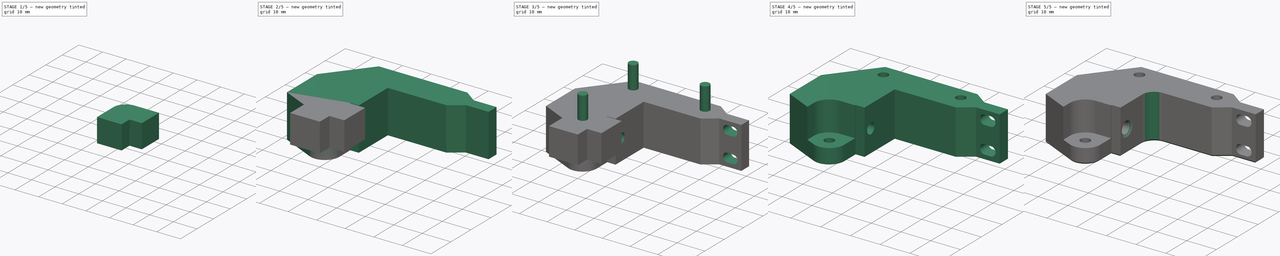
[diagram: build sequence overview — one tinted view per stage of 5, left to right]
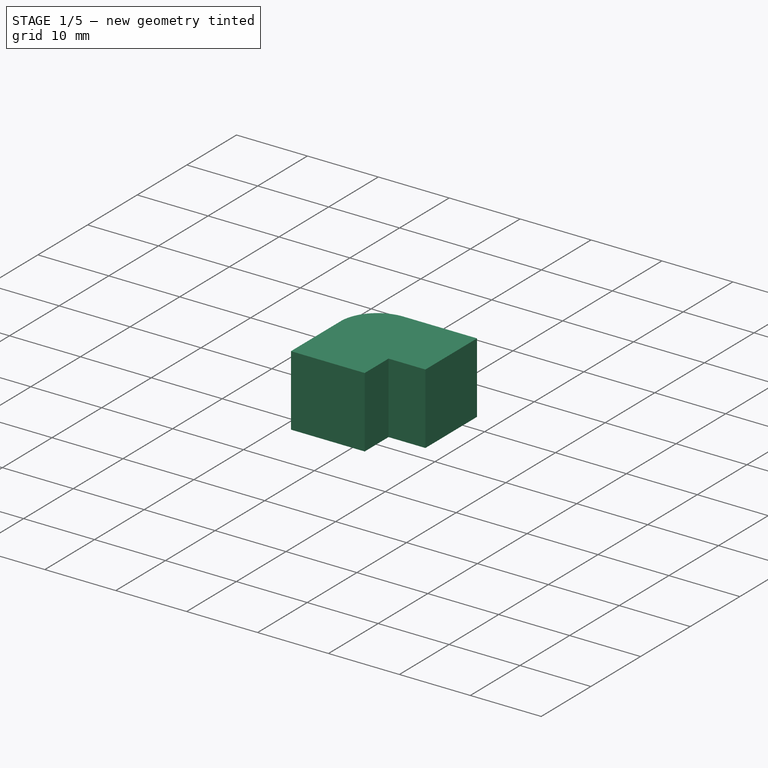
[diagram: stage 1 of 5 — iso view after this stage's code; geometry added in this stage tinted green]
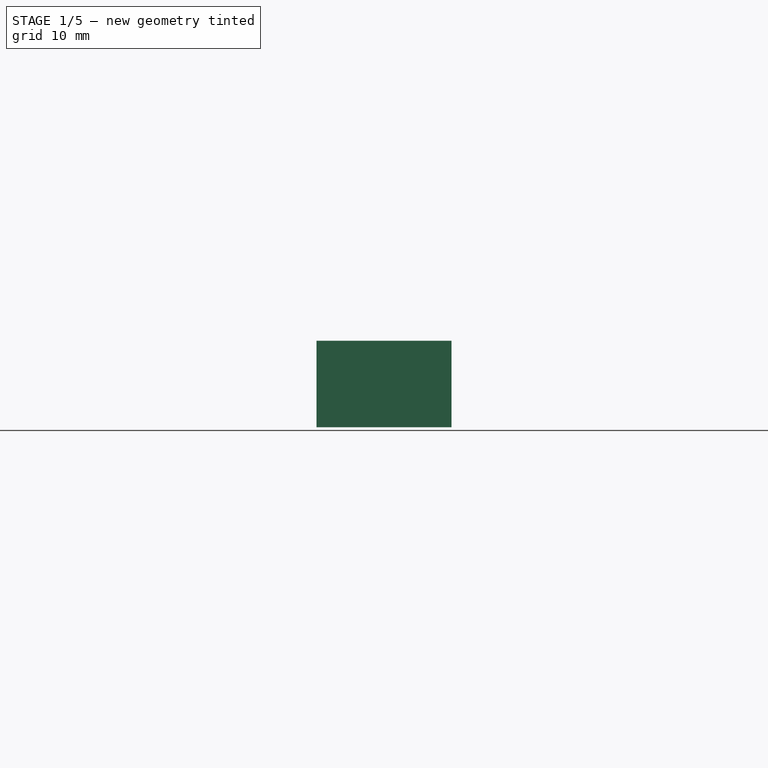
[diagram: stage 1 of 5 — front view after this stage's code; geometry added in this stage tinted green]
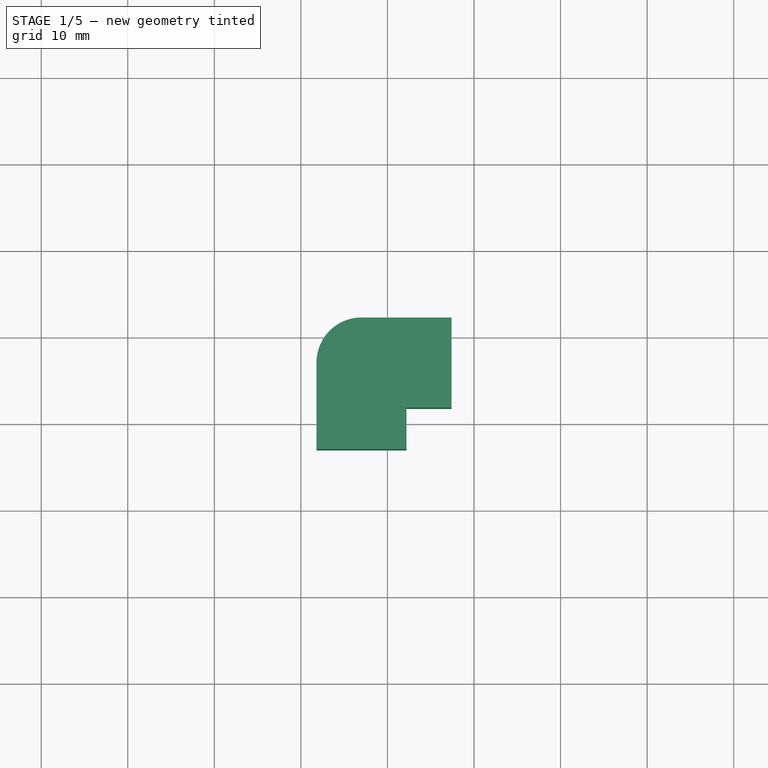
[diagram: stage 1 of 5 — top view after this stage's code; geometry added in this stage tinted green]
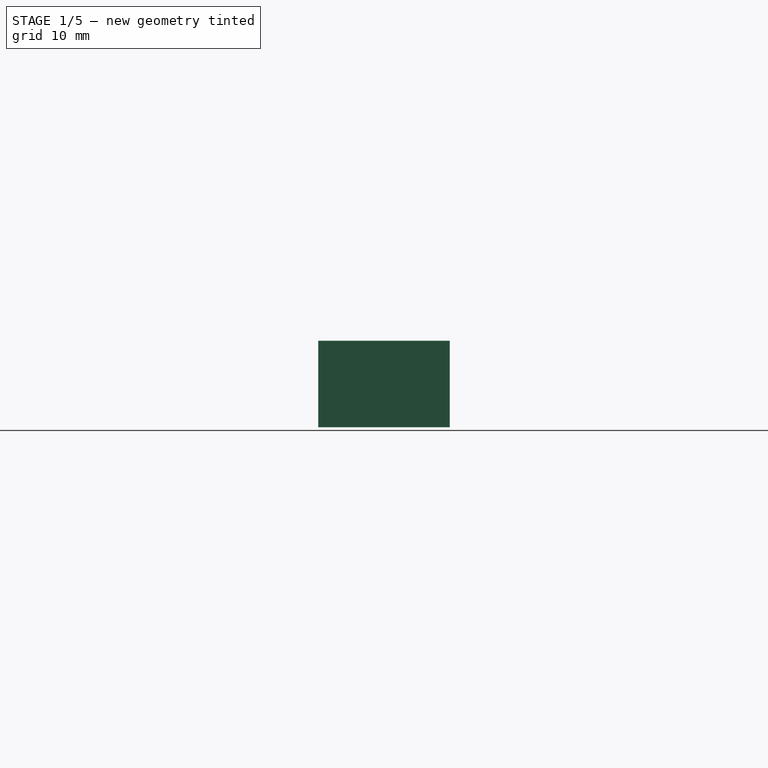
[diagram: stage 1 of 5 — right view after this stage's code; geometry added in this stage tinted green]
FCSTD DOCUMENT  (FreeCAD 0.16R6707 (Git))
Label: cuerpo
License: CreativeCommons Attribution-NonCommercial
LicenseURL: http://creativecommons.org/licenses/by-nc/4.0/
objects: Sketcher::SketchObject×6, PartDesign::Pad×3, PartDesign::Pocket×3, Part::MultiFuse×2, Part::Cut×2, Part::Box×2, PartDesign::Fillet×2, Part::Cylinder×1, PartDesign::Chamfer×1
note: 28 computed .brp shape members not serialized (recipe doc carries the construction recipe); baked Part::Feature solids carry a one-line shape summary decoded from their .brp

FEATURE [Part::Cylinder] Cylinder
  Angle = 360
  Height = 10
  Placement = pos=(-13,-13,5) rot=(0,0,1;0rad)
  Radius = 5.2
FEATURE [Part::Box] Box  label="Cube"
  Height = 10
  Length = 10.4
  Placement = pos=(-13,-18.2,5) rot=(0,0,1;0rad)
  Width = 10.4
FEATURE [Part::Box] Box001  label="Cube001"
  Height = 10
  Length = 10.4
  Placement = pos=(-18.2,-23,5) rot=(0,0,1;0rad)
  Width = 10
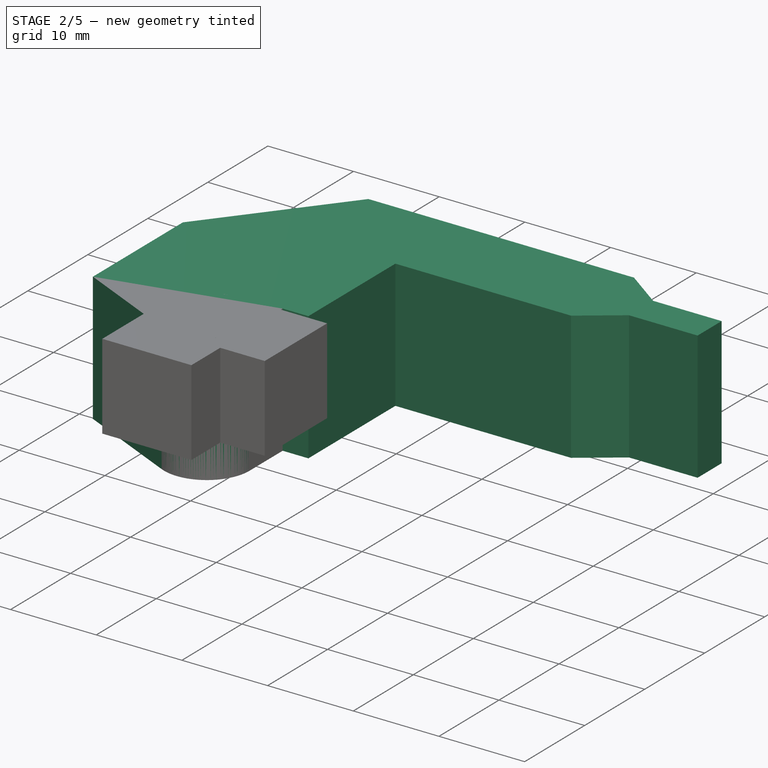
[diagram: stage 2 of 5 — iso view after this stage's code; geometry added in this stage tinted green]
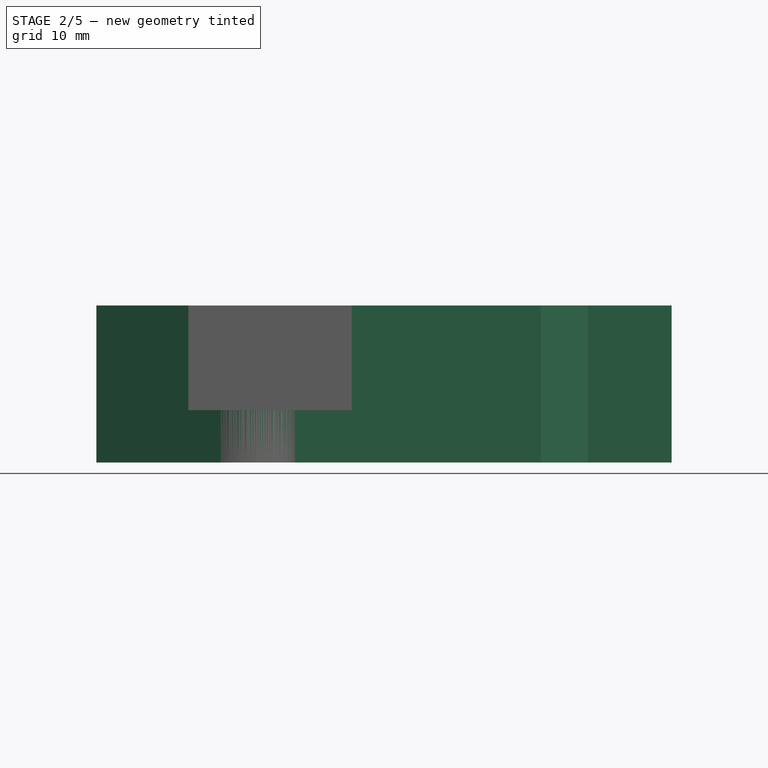
[diagram: stage 2 of 5 — front view after this stage's code; geometry added in this stage tinted green]
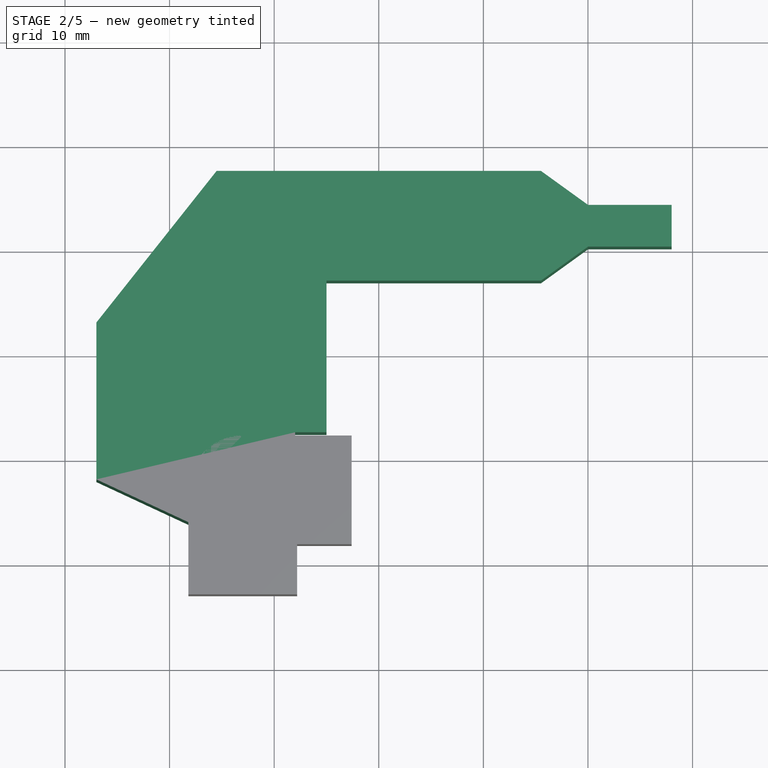
[diagram: stage 2 of 5 — top view after this stage's code; geometry added in this stage tinted green]
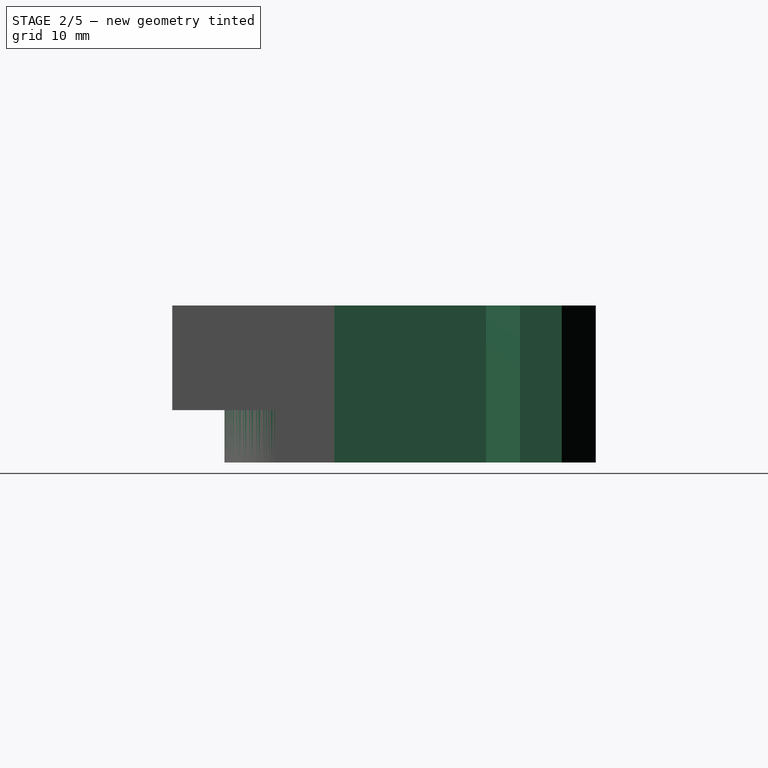
[diagram: stage 2 of 5 — right view after this stage's code; geometry added in this stage tinted green]
FEATURE [Sketcher::SketchObject] Sketch002
  sketch-geometry (14):
    g0: LineSegment StartX=-15.1095 StartY=-17.5332 StartZ=0 EndX=-27 EndY=-12 EndZ=0
    g1: LineSegment StartX=-27 StartY=-12 StartZ=0 EndX=-27 EndY=3 EndZ=0
    g2: LineSegment StartX=-27 StartY=3 StartZ=0 EndX=-15.5 EndY=17.5 EndZ=0
    g3: LineSegment StartX=-15.5 StartY=17.5 StartZ=0 EndX=15.5 EndY=17.5 EndZ=0
    g4: LineSegment StartX=15.5 StartY=17.5 StartZ=0 EndX=20 EndY=14.25 EndZ=0
    g5: LineSegment StartX=20 StartY=14.25 StartZ=0 EndX=28 EndY=14.25 EndZ=0
    g6: LineSegment StartX=28 StartY=14.25 StartZ=0 EndX=28 EndY=10.25 EndZ=0
    g7: LineSegment StartX=28 StartY=10.25 StartZ=0 EndX=20 EndY=10.25 EndZ=0
    g8: LineSegment StartX=20 StartY=10.25 StartZ=0 EndX=15.5 EndY=7 EndZ=0
    g9: LineSegment StartX=15.5 StartY=7 StartZ=0 EndX=-5 EndY=7 EndZ=0
    g10: LineSegment StartX=-5 StartY=7 StartZ=0 EndX=-5 EndY=-7.5 EndZ=0
    g11: LineSegment StartX=-5 StartY=-7.5 StartZ=0 EndX=-8 EndY=-7.5 EndZ=0
    g12: ArcOfCircle CenterX=-13 CenterY=-13 CenterZ=0 NormalX=0 NormalY=0 NormalZ=1 Radius=5 StartAngle=4.27684 EndAngle=6.28319
    g13: LineSegment StartX=-8 StartY=-7.5 StartZ=0 EndX=-8 EndY=-13 EndZ=0
  constraints (43):
    c: Coincident(g0,g1)
    c: Vertical(g1)
    c: Coincident(g1,g2)
    c: Coincident(g2,g3)
    c: Horizontal(g3)
    c: Coincident(g3,g4)
    c: Coincident(g4,g5)
    c: Horizontal(g5)
    c: Coincident(g5,g6)
    c: Vertical(g6)
    c: Coincident(g6,g7)
    c: Horizontal(g7)
    c: Coincident(g7,g8)
    c: Coincident(g8,g9)
    c: Horizontal(g9)
    c: Coincident(g9,g10)
    c: Vertical(g10)
    c: Coincident(g11,g10)
    c: Horizontal(g11)
    c: Coincident(g12,g0)
    c: Radius(g12) = 5
    c: Coincident(g13,g11)
    c: Coincident(g13,g12)
    c: Vertical(g13)
    c: DistanceY(g-1,g12) = -13
    c: DistanceX(g-1,g12) = -13
    c: Tangent(g12,g0)
    c: DistanceY(g1) = 15
    c: DistanceY(g6) = -4
    c: DistanceX(g-1,g10) = -5
    c: DistanceY(g-1,g3) = 17.5
    c: DistanceY(g-1,g8) = 7
    c: Symmetric(g2,g3,g-2)
    c: DistanceY(g-1,g0) = -12
    c: DistanceY(g0,g11) = 4.5
    c: Equal(g5,g7)
    c: DistanceX(g3) = 31
    c: Equal(g4,g8)
    c: DistanceX(g8,g3) = 0
    c: DistanceX(g-1,g6) = 28
    c: DistanceX(g5) = 8
    c: Tangent(g12,g13)
    c: DistanceX(g0,g10) = 22
FEATURE [PartDesign::Pad] Pad002  label="cuerpo_base"
  Length = 15
  Length2 = 100
  Sketch = -> Sketch002
  Type = 0
FEATURE [Sketcher::SketchObject] Sketch003
  ExternalGeometry = -> [Pad002]
  Placement = pos=(-27,0,0) rot=(0.57735,-0.57735,-0.57735;2.0944rad)
  Support = -> Pad002 [Face2]
  sketch-geometry (2):
    g0: LineSegment [constr] StartX=-3 StartY=0 StartZ=0 EndX=12 EndY=15 EndZ=0
    g1: Circle CenterX=4.5 CenterY=7.5 CenterZ=0 NormalX=0 NormalY=0 NormalZ=1 Radius=4.9
  constraints (5):
    c: Coincident(g0,g-4)
    c: Coincident(g0,g-3)
    c: PointOnObject(g1,g0)
    c: Symmetric(g0,g0,g1)
    c: Radius(g1) = 4.9
FEATURE [PartDesign::Pocket] Pocket  label="coupler"
  Length = 7.5
  Sketch = -> Sketch003
  Type = 0
FEATURE [Part::MultiFuse] Fusion001  label="bisagra"
  Shapes = -> [Box001,Box,Cylinder]
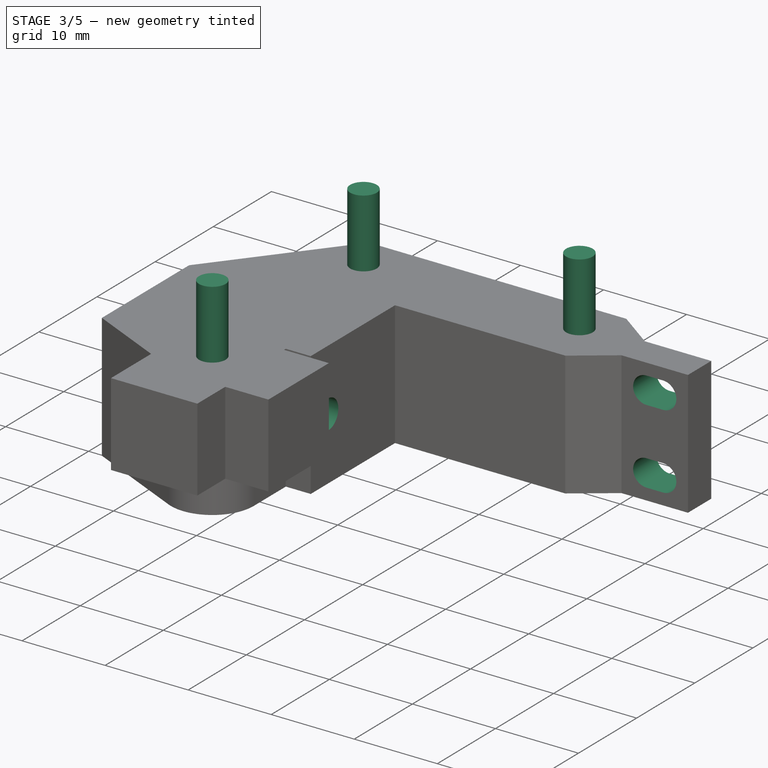
[diagram: stage 3 of 5 — iso view after this stage's code; geometry added in this stage tinted green]
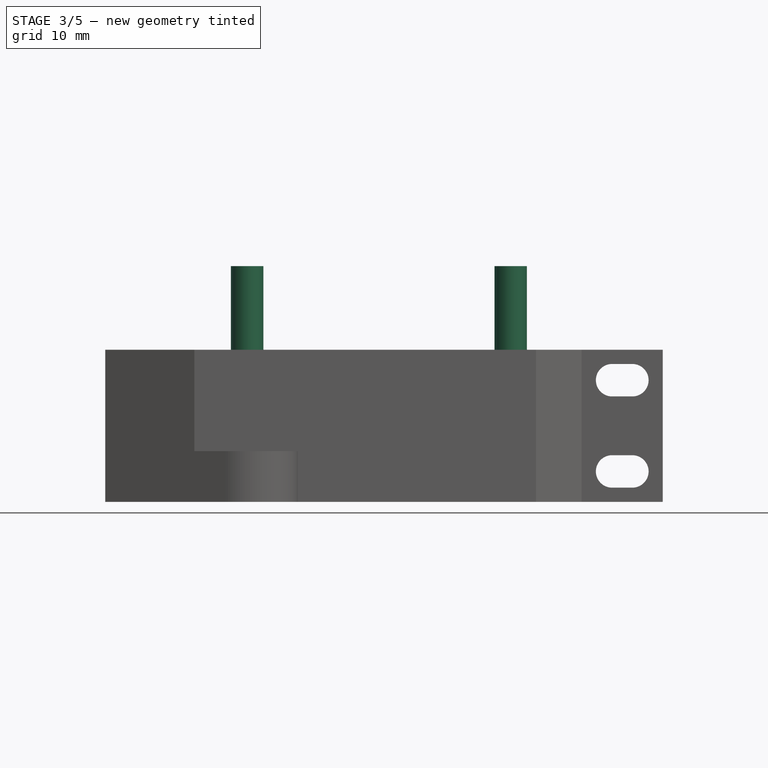
[diagram: stage 3 of 5 — front view after this stage's code; geometry added in this stage tinted green]
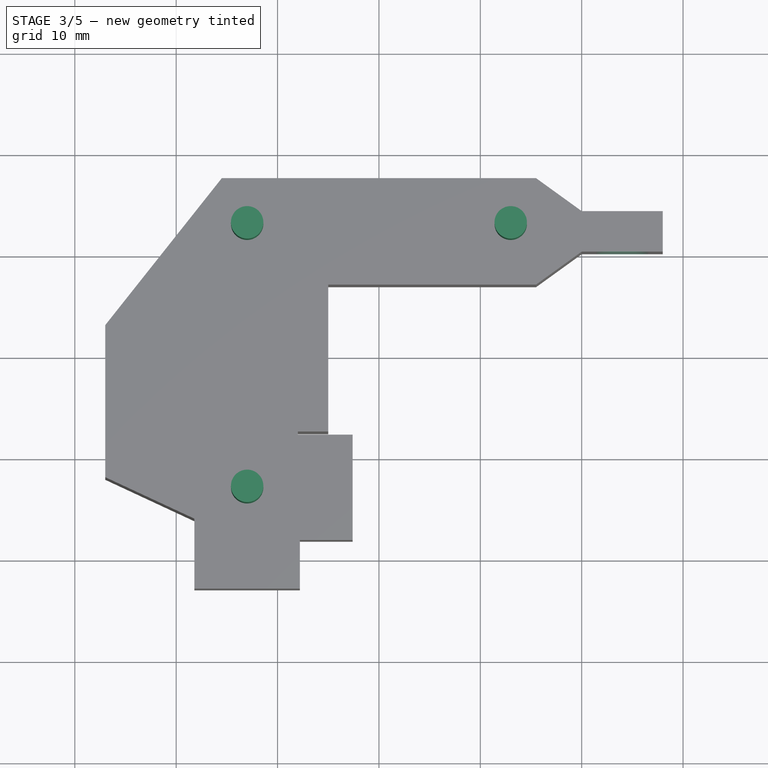
[diagram: stage 3 of 5 — top view after this stage's code; geometry added in this stage tinted green]
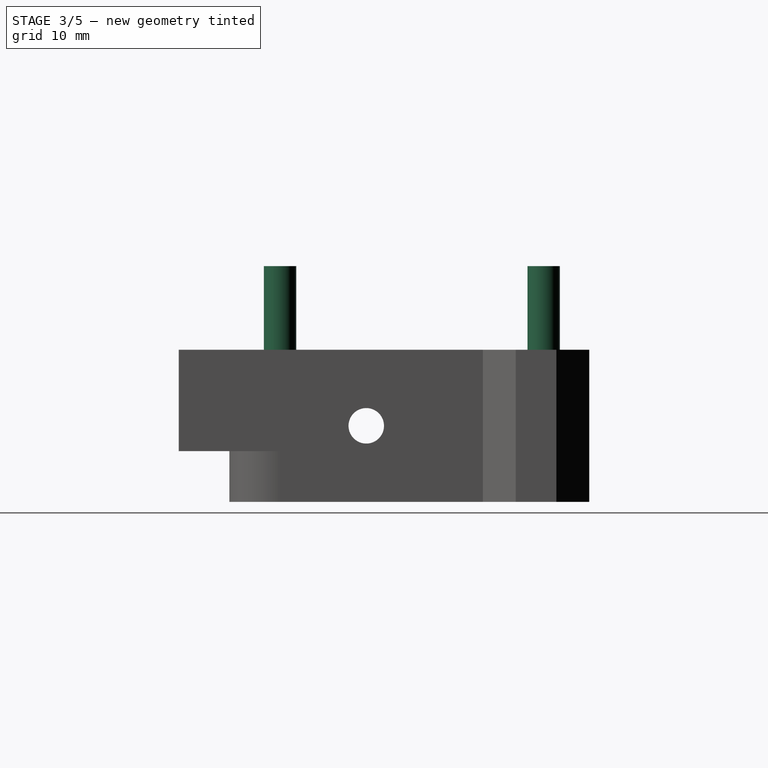
[diagram: stage 3 of 5 — right view after this stage's code; geometry added in this stage tinted green]
FEATURE [Sketcher::SketchObject] Sketch
  sketch-geometry (7):
    g0: Circle CenterX=-13 CenterY=13 CenterZ=0 NormalX=0 NormalY=0 NormalZ=1 Radius=3
    g1: LineSegment [constr] StartX=-13 StartY=13 StartZ=0 EndX=13 EndY=13 EndZ=0
    g2: LineSegment [constr] StartX=13 StartY=13 StartZ=0 EndX=13 EndY=-13 EndZ=0
    g3: LineSegment [constr] StartX=13 StartY=-13 StartZ=0 EndX=-13 EndY=-13 EndZ=0
    g4: LineSegment [constr] StartX=-13 StartY=-13 StartZ=0 EndX=-13 EndY=13 EndZ=0
    g5: Circle CenterX=13 CenterY=13 CenterZ=0 NormalX=0 NormalY=0 NormalZ=1 Radius=3
    g6: Circle CenterX=-13 CenterY=-13 CenterZ=0 NormalX=0 NormalY=0 NormalZ=1 Radius=3
  constraints (17):
    c: Coincident(g1,g2)
    c: Coincident(g2,g3)
    c: Coincident(g3,g4)
    c: Coincident(g4,g1)
    c: Horizontal(g1)
    c: Horizontal(g3)
    c: Vertical(g2)
    c: Vertical(g4)
    c: Coincident(g1,g0)
    c: Symmetric(g2,g0,g-1)
    c: Coincident(g5,g1)
    c: Coincident(g6,g3)
    c: Equal(g1,g2)
    c: Equal(g6,g0)
    c: Equal(g0,g5)
    c: Radius(g5) = 3
    c: DistanceY(g2) = -26
FEATURE [Sketcher::SketchObject] Sketch001
  Placement = pos=(0,0,3.25) rot=(0,0,1;0rad)
  sketch-geometry (7):
    g0: Circle CenterX=-13 CenterY=13 CenterZ=0 NormalX=0 NormalY=0 NormalZ=1 Radius=1.6
    g1: LineSegment [constr] StartX=-13 StartY=13 StartZ=0 EndX=13 EndY=13 EndZ=0
    g2: LineSegment [constr] StartX=13 StartY=13 StartZ=0 EndX=13 EndY=-13 EndZ=0
    g3: LineSegment [constr] StartX=13 StartY=-13 StartZ=0 EndX=-13 EndY=-13 EndZ=0
    g4: LineSegment [constr] StartX=-13 StartY=-13 StartZ=0 EndX=-13 EndY=13 EndZ=0
    g5: Circle CenterX=13 CenterY=13 CenterZ=0 NormalX=0 NormalY=0 NormalZ=1 Radius=1.6
    g6: Circle CenterX=-13 CenterY=-13 CenterZ=0 NormalX=0 NormalY=0 NormalZ=1 Radius=1.6
  constraints (17):
    c: Coincident(g1,g2)
    c: Coincident(g2,g3)
    c: Coincident(g3,g4)
    c: Coincident(g4,g1)
    c: Horizontal(g1)
    c: Horizontal(g3)
    c: Vertical(g2)
    c: Vertical(g4)
    c: Coincident(g1,g0)
    c: Symmetric(g2,g0,g-1)
    c: Coincident(g5,g1)
    c: Coincident(g6,g3)
    c: Equal(g1,g2)
    c: Equal(g6,g0)
    c: Equal(g0,g5)
    c: Radius(g5) = 1.6
    c: DistanceY(g2) = -26
FEATURE [PartDesign::Pad] Pad  label="cuerpo_tornillos"
  Length = 20
  Length2 = 100
  Placement = pos=(0,0,3.25) rot=(0,0,1;0rad)
  Sketch = -> Sketch001
  Type = 0
FEATURE [PartDesign::Pad] Pad001  label="cabeza_tornillos"
  Length = 3
  Length2 = 100
  Sketch = -> Sketch
  Type = 0
FEATURE [Sketcher::SketchObject] Sketch004
  ExternalGeometry = -> [Pocket]
  Placement = pos=(-19.5,0,0) rot=(0.57735,-0.57735,-0.57735;2.0944rad)
  Support = -> Pocket [Face18]
  sketch-geometry (1):
    g0: Circle CenterX=4.5 CenterY=7.5 CenterZ=0 NormalX=0 NormalY=0 NormalZ=1 Radius=1.75
  constraints (2):
    c: Coincident(g0,g-3)
    c: Radius(g0) = 1.75
FEATURE [PartDesign::Pocket] Pocket001  label="filamento"
  Length = 11
  Sketch = -> Sketch004
  Type = 1
FEATURE [Sketcher::SketchObject] Sketch005
  Placement = pos=(0,14.25,0) rot=(0,0.707107,0.707107;3.14159rad)
  Support = -> Pocket001 [Face11]
  sketch-geometry (8):
    g0: ArcOfCircle CenterX=-25 CenterY=12 CenterZ=0 NormalX=0 NormalY=0 NormalZ=1 Radius=1.6 StartAngle=1.5708 EndAngle=4.71239
    g1: ArcOfCircle CenterX=-23 CenterY=12 CenterZ=0 NormalX=0 NormalY=0 NormalZ=1 Radius=1.6 StartAngle=4.71239 EndAngle=7.85398
    g2: LineSegment StartX=-25 StartY=10.4 StartZ=0 EndX=-23 EndY=10.4 EndZ=0
    g3: LineSegment StartX=-25 StartY=13.6 StartZ=0 EndX=-23 EndY=13.6 EndZ=0
    g4: ArcOfCircle CenterX=-25 CenterY=3 CenterZ=0 NormalX=0 NormalY=0 NormalZ=1 Radius=1.6 StartAngle=1.5708 EndAngle=4.71239
    g5: ArcOfCircle CenterX=-23 CenterY=3 CenterZ=0 NormalX=0 NormalY=0 NormalZ=1 Radius=1.6 StartAngle=4.71239 EndAngle=7.85398
    g6: LineSegment StartX=-25 StartY=1.4 StartZ=0 EndX=-23 EndY=1.4 EndZ=0
    g7: LineSegment StartX=-25 StartY=4.6 StartZ=0 EndX=-23 EndY=4.6 EndZ=0
  constraints (20):
    c: Tangent(g0,g3) = 1.5708
    c: Tangent(g0,g2) = -1.5708
    c: Tangent(g2,g1) = -1.5708
    c: Tangent(g3,g1) = 1.5708
    c: Horizontal(g2)
    c: Equal(g0,g1)
    c: Tangent(g4,g7) = 1.5708
    c: Tangent(g4,g6) = -1.5708
    c: Tangent(g6,g5) = -1.5708
    c: Tangent(g7,g5) = 1.5708
    c: Horizontal(g6)
    c: Equal(g4,g5)
    c: Equal(g7,g3)
    c: DistanceX(g3) = 2
    c: Equal(g0,g4)
    c: Radius(g0) = 1.6
    c: DistanceY(g-1,g4) = 3
    c: DistanceX(g4,g0) = 0
    c: DistanceY(g4,g0) = 9
    c: DistanceX(g-1,g4) = -25
FEATURE [PartDesign::Pocket] Pocket002
  Length = 5
  Sketch = -> Sketch005
  Type = 0
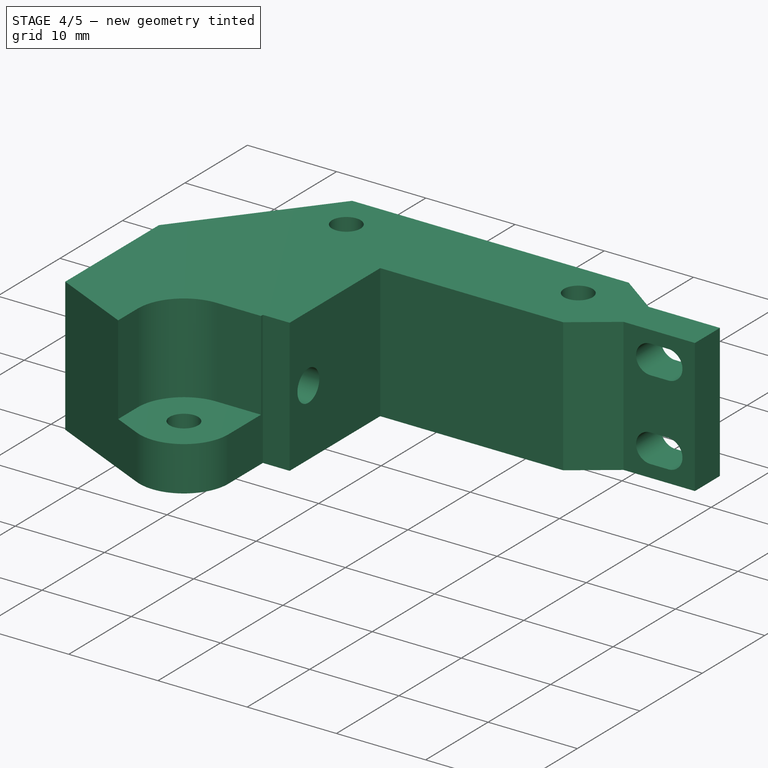
[diagram: stage 4 of 5 — iso view after this stage's code; geometry added in this stage tinted green]
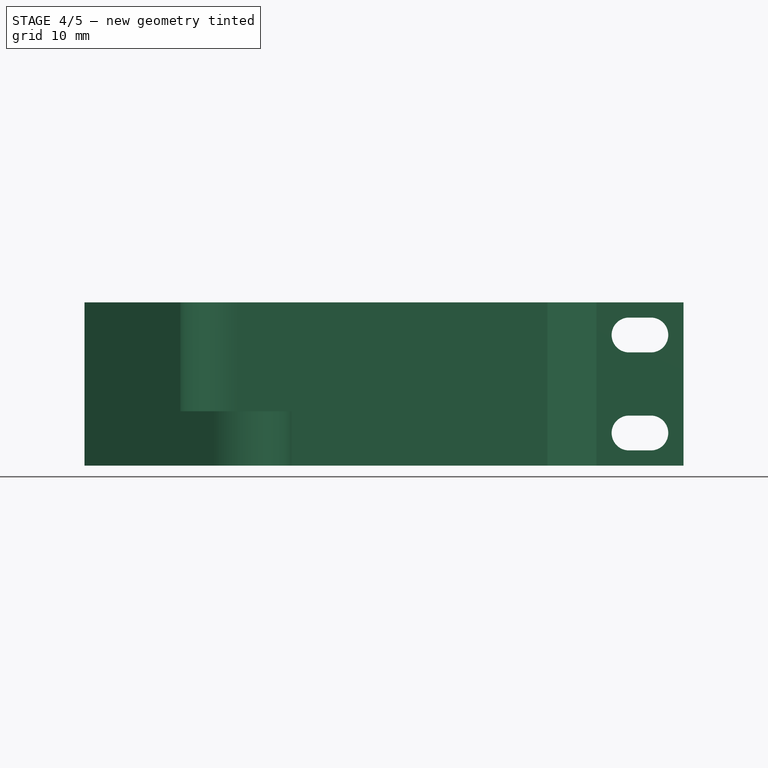
[diagram: stage 4 of 5 — front view after this stage's code; geometry added in this stage tinted green]
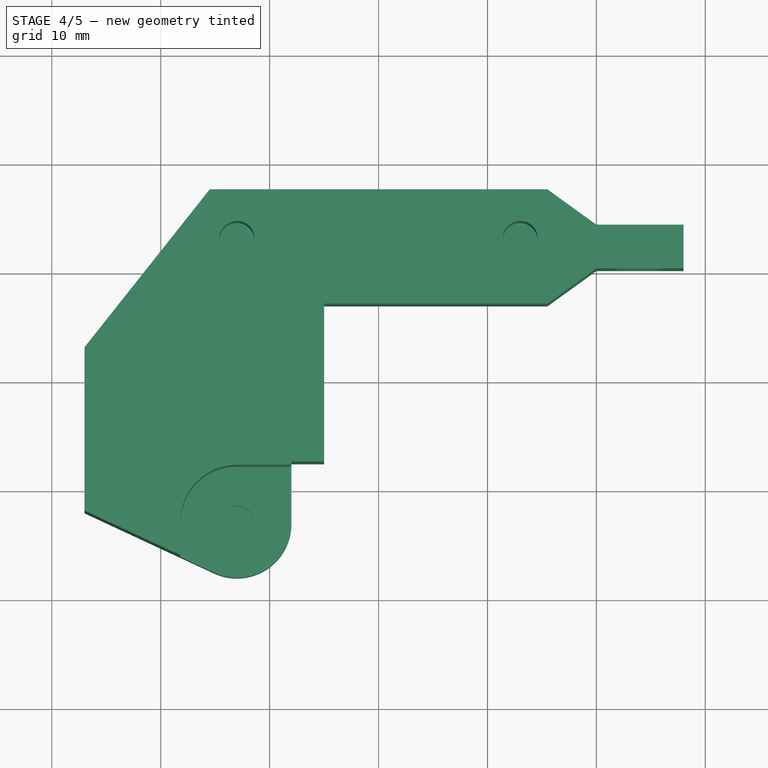
[diagram: stage 4 of 5 — top view after this stage's code; geometry added in this stage tinted green]
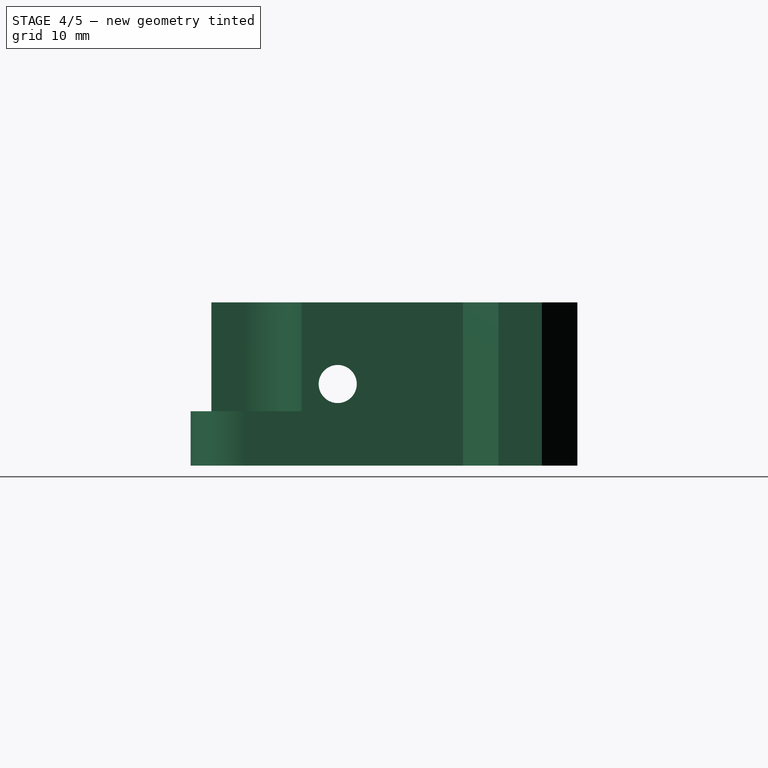
[diagram: stage 4 of 5 — right view after this stage's code; geometry added in this stage tinted green]
FEATURE [Part::MultiFuse] Fusion  label="tornillos"
  Shapes = -> [Pad001,Pad]
FEATURE [Part::Cut] Cut
  Base = -> Pocket002
  Tool = -> Fusion
FEATURE [Part::Cut] Cut001
  Base = -> Cut
  Tool = -> Fusion001
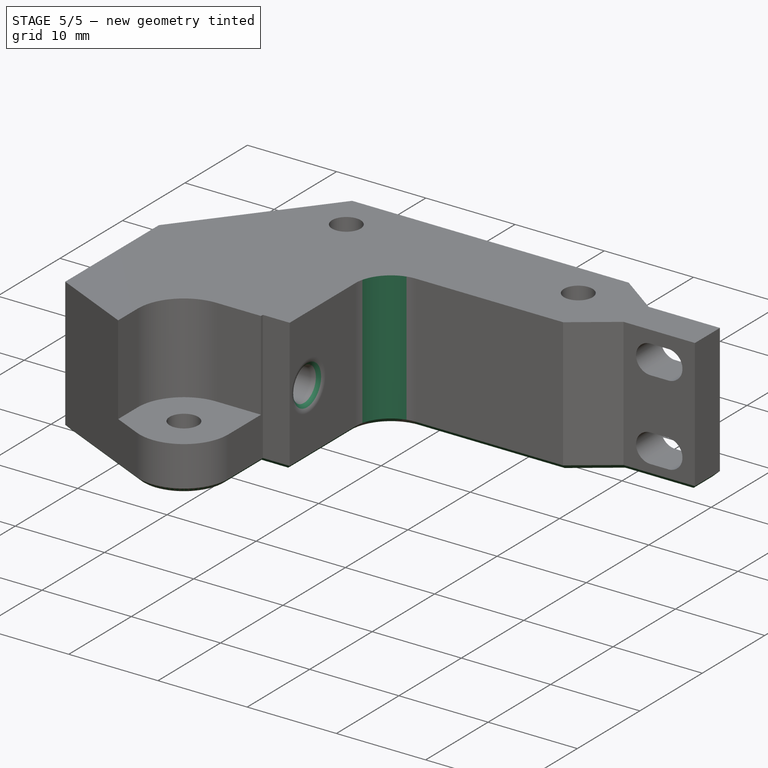
[diagram: stage 5 of 5 — iso view after this stage's code; geometry added in this stage tinted green]
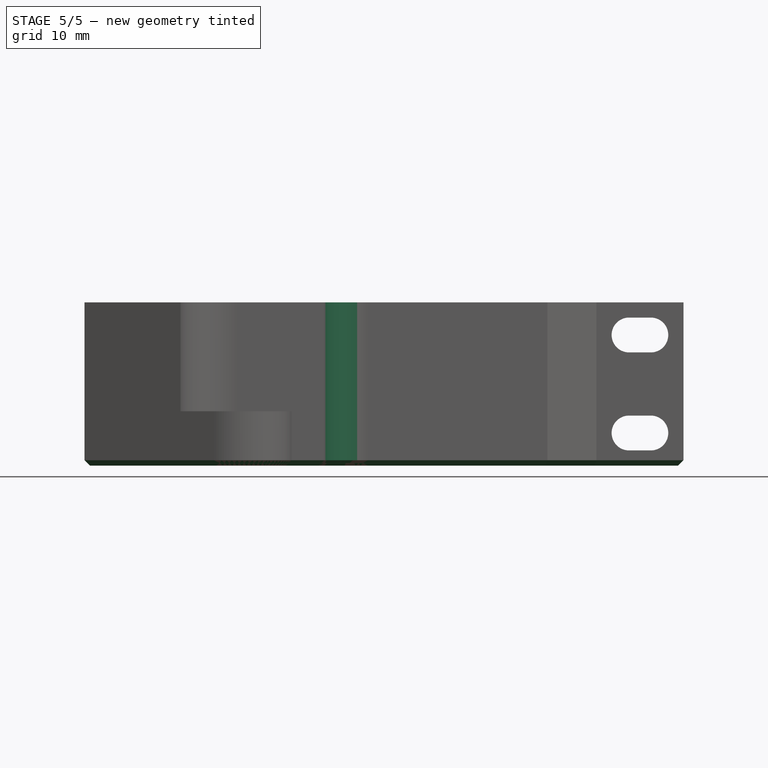
[diagram: stage 5 of 5 — front view after this stage's code; geometry added in this stage tinted green]
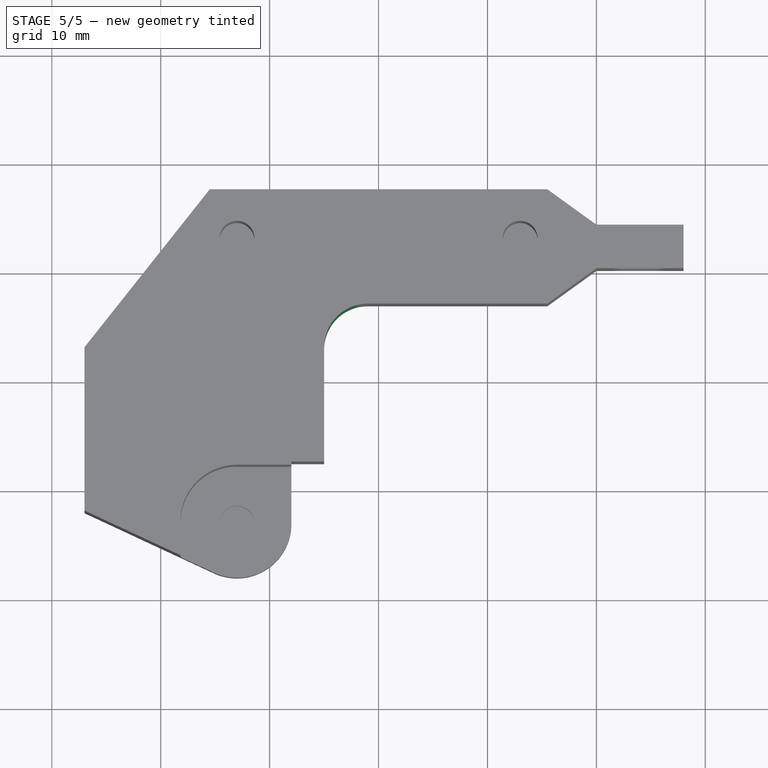
[diagram: stage 5 of 5 — top view after this stage's code; geometry added in this stage tinted green]
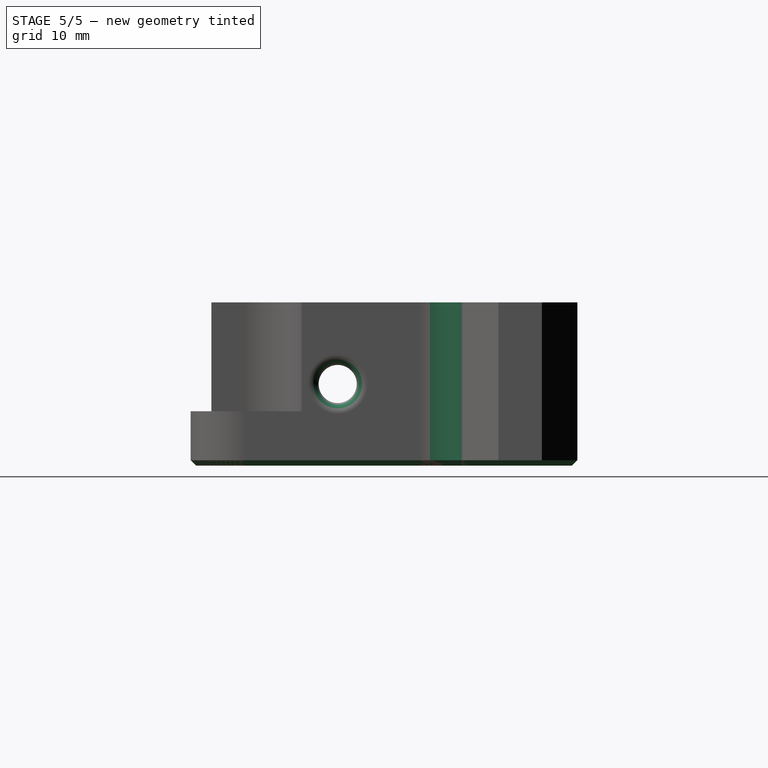
[diagram: stage 5 of 5 — right view after this stage's code; geometry added in this stage tinted green]
FEATURE [PartDesign::Fillet] Fillet
  Base = -> Cut001 [Edge55]
  Radius = 4
FEATURE [PartDesign::Fillet] Fillet001
  Base = -> Fillet [Edge22]
  Radius = 1
FEATURE [PartDesign::Chamfer] Chamfer
  Base = -> Fillet001 [Edge21,Edge19,Edge17,Edge15,Edge13,Edge11,Edge9,Edge2,Edge8,Edge10,Edge12,Edge14,Edge16,Edge18,Edge20]
  Size = 0.5
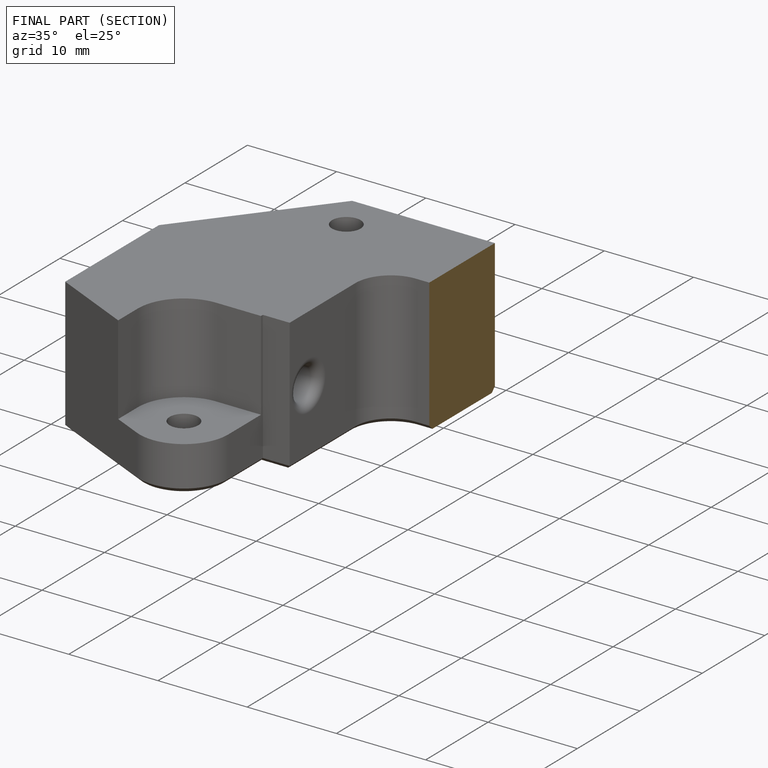
[diagram: finished part — half-section view (interior)]
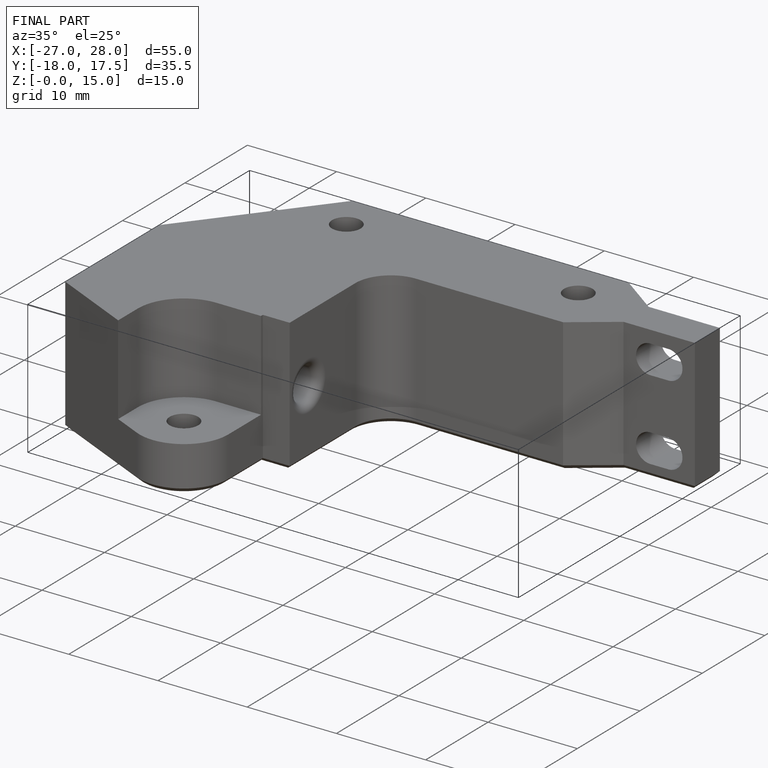
[diagram: finished part — iso view with bounding-box wireframe]
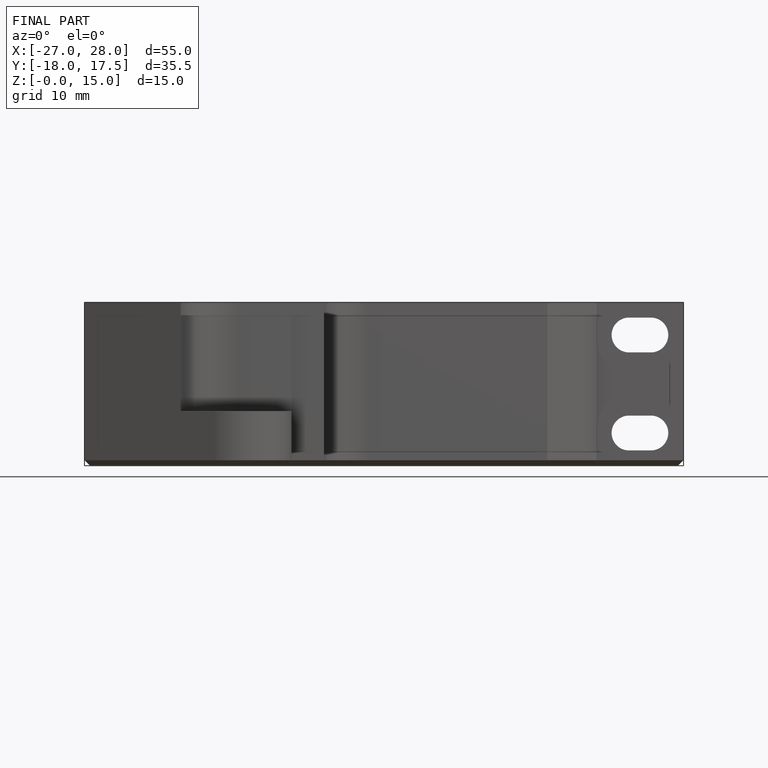
[diagram: finished part — front view with bounding-box wireframe]
